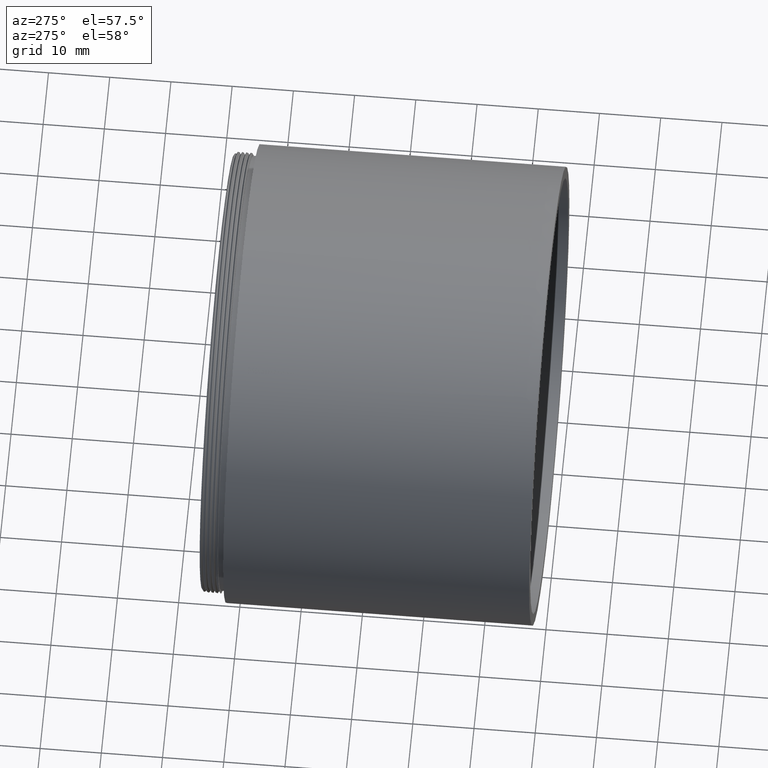
[diagram: clean part render]
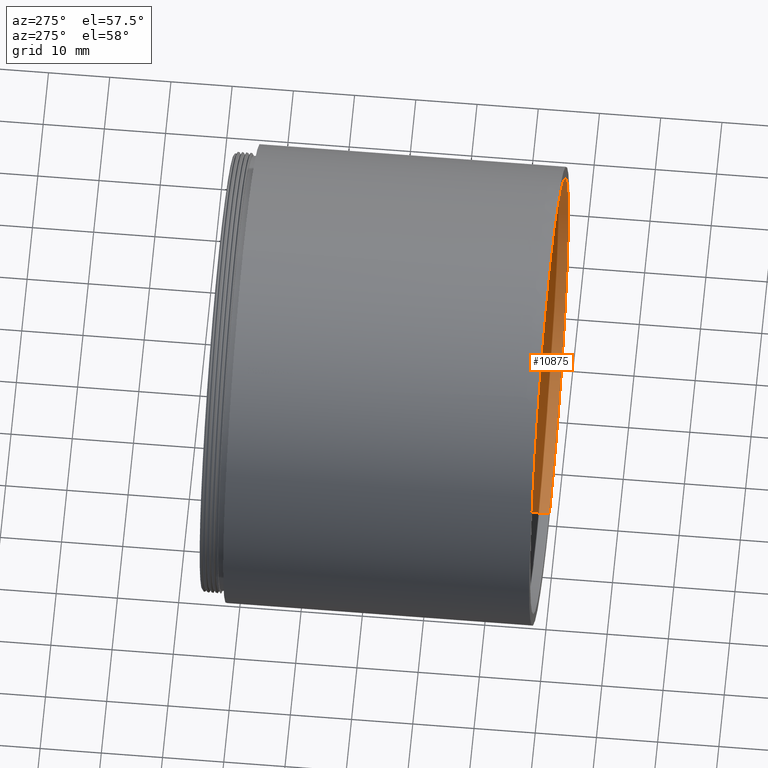
[diagram: same view with one face highlighted and labeled with its STEP entity id]
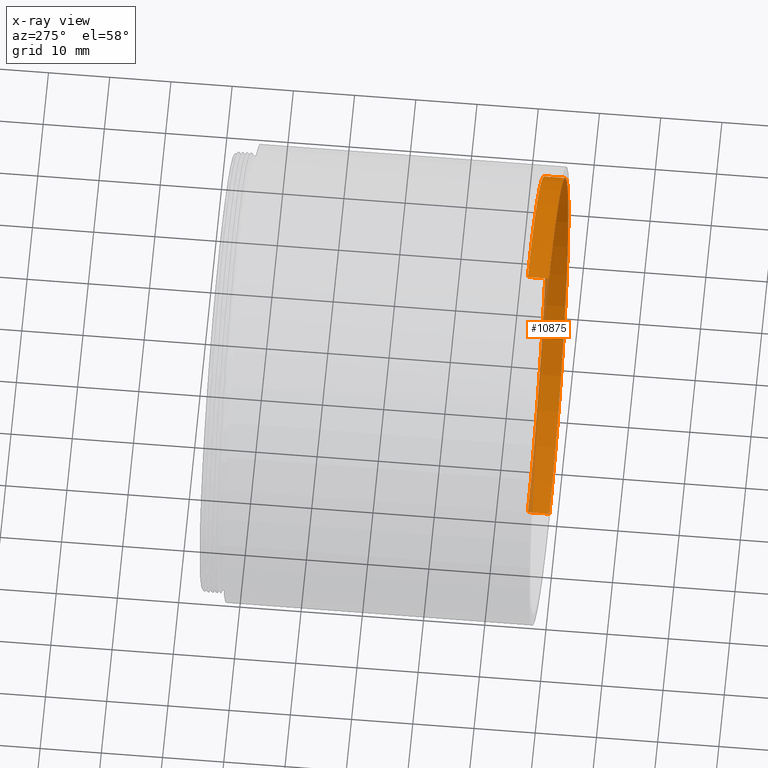
[diagram: x-ray of the same camera — body ghosted, the highlighted face saturated]
A machine part, auxiliary view. The second image highlights one B-rep face of the part: STEP entity #10875.
The next image is the same camera in x-ray: the body ghosted, the highlighted face saturated — about 6% of this face is hidden behind the body in this view.
In plain terms, the highlighted cylindrical surface (partial cylindrical patch) has radius 35.6 mm, axis along (-0, -1, -0).
Its self-contained STEP definition (entity closure, byte-faithful):
#502 = DIRECTION ( 'NONE',  ( -0.0000000000000000000, -1.000000000000000000, -0.0000000000000000000 ) ) ;
#892 = EDGE_CURVE ( 'NONE', #8566, #6366, #1122, .T. ) ;
#1122 = LINE ( 'NONE', #9055, #15617 ) ;
#1198 = DIRECTION ( 'NONE',  ( -0.0000000000000000000, -1.000000000000000000, -0.0000000000000000000 ) ) ;
#1616 = DIRECTION ( 'NONE',  ( -0.0000000000000000000, -1.000000000000000000, -0.0000000000000000000 ) ) ;
#1645 = EDGE_LOOP ( 'NONE', ( #5571, #14458, #11468, #5061 ) ) ;
#2003 = VERTEX_POINT ( 'NONE', #5508 ) ;
#2438 = LINE ( 'NONE', #7676, #7817 ) ;
#2717 = DIRECTION ( 'NONE',  ( 0.0000000000000000000, 0.0000000000000000000, -1.000000000000000000 ) ) ;
#2889 = FACE_OUTER_BOUND ( 'NONE', #1645, .T. ) ;
#4943 = DIRECTION ( 'NONE',  ( -0.0000000000000000000, -1.000000000000000000, -0.0000000000000000000 ) ) ;
#5061 = ORIENTED_EDGE ( 'NONE', *, *, #7930, .T. ) ;
#5450 = CIRCLE ( 'NONE', #11902, 35.60000000000218279 ) ;
#5508 = CARTESIAN_POINT ( 'NONE',  ( 4.359742604964845640E-15, 1.201941862066846500, 35.60000000000218279 ) ) ;
#5571 = ORIENTED_EDGE ( 'NONE', *, *, #9432, .F. ) ;
#6366 = VERTEX_POINT ( 'NONE', #16214 ) ;
#7191 = CARTESIAN_POINT ( 'NONE',  ( 4.359742604964845640E-15, 4.701941862067099187, 35.60000000000218279 ) ) ;
#7464 = DIRECTION ( 'NONE',  ( 0.0000000000000000000, 0.0000000000000000000, -1.000000000000000000 ) ) ;
#7676 = CARTESIAN_POINT ( 'NONE',  ( 4.359742604964845640E-15, 0.0000000000000000000, 35.60000000000218279 ) ) ;
#7710 = CARTESIAN_POINT ( 'NONE',  ( 0.0000000000000000000, 1.201941862066846500, 0.0000000000000000000 ) ) ;
#7817 = VECTOR ( 'NONE', #15190, 1000.000000000000000 ) ;
#7930 = EDGE_CURVE ( 'NONE', #6366, #2003, #15357, .T. ) ;
#8042 = CYLINDRICAL_SURFACE ( 'NONE', #13543, 35.60000000000218279 ) ;
#8089 = AXIS2_PLACEMENT_3D ( 'NONE', #7710, #4943, #7464 ) ;
#8566 = VERTEX_POINT ( 'NONE', #12820 ) ;
#9055 = CARTESIAN_POINT ( 'NONE',  ( 0.0000000000000000000, 0.0000000000000000000, -35.60000000000218279 ) ) ;
#9384 = CARTESIAN_POINT ( 'NONE',  ( 0.0000000000000000000, 4.701941862067099187, 0.0000000000000000000 ) ) ;
#9432 = EDGE_CURVE ( 'NONE', #14302, #2003, #2438, .T. ) ;
#10641 = DIRECTION ( 'NONE',  ( 0.0000000000000000000, 0.0000000000000000000, -1.000000000000000000 ) ) ;
#10875 = ADVANCED_FACE ( 'NONE', ( #2889 ), #8042, .F. ) ;
#11468 = ORIENTED_EDGE ( 'NONE', *, *, #892, .T. ) ;
#11902 = AXIS2_PLACEMENT_3D ( 'NONE', #9384, #502, #2717 ) ;
#12732 = EDGE_CURVE ( 'NONE', #8566, #14302, #5450, .T. ) ;
#12820 = CARTESIAN_POINT ( 'NONE',  ( 0.0000000000000000000, 4.701941862067099187, -35.60000000000218279 ) ) ;
#13196 = CARTESIAN_POINT ( 'NONE',  ( 0.0000000000000000000, 0.0000000000000000000, 0.0000000000000000000 ) ) ;
#13543 = AXIS2_PLACEMENT_3D ( 'NONE', #13196, #1616, #10641 ) ;
#14302 = VERTEX_POINT ( 'NONE', #7191 ) ;
#14458 = ORIENTED_EDGE ( 'NONE', *, *, #12732, .F. ) ;
#15190 = DIRECTION ( 'NONE',  ( -0.0000000000000000000, -1.000000000000000000, -0.0000000000000000000 ) ) ;
#15357 = CIRCLE ( 'NONE', #8089, 35.60000000000218279 ) ;
#15617 = VECTOR ( 'NONE', #1198, 1000.000000000000000 ) ;
#16214 = CARTESIAN_POINT ( 'NONE',  ( 0.0000000000000000000, 1.201941862066846500, -35.60000000000218279 ) ) ;